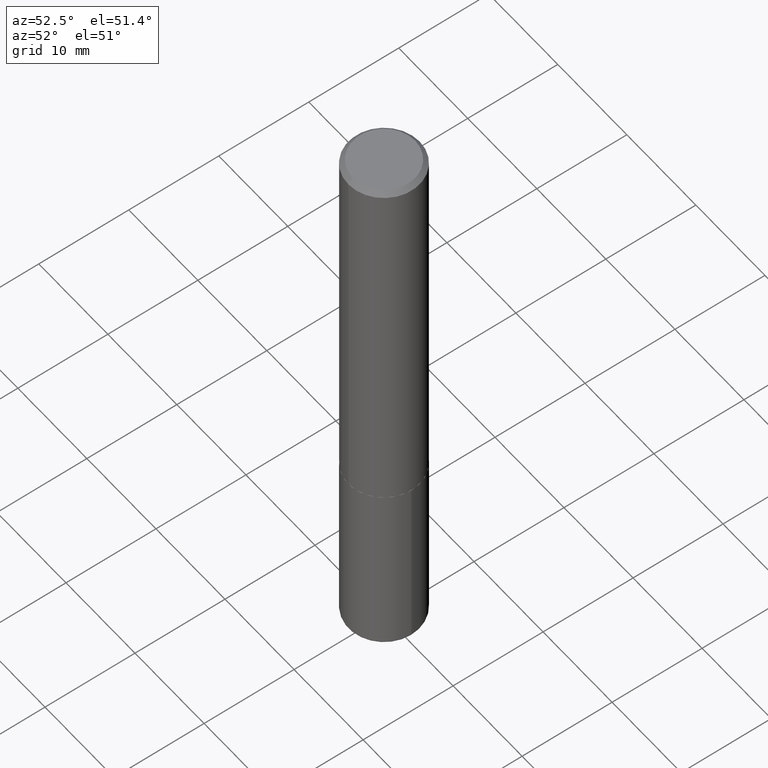
[diagram: clean part render]
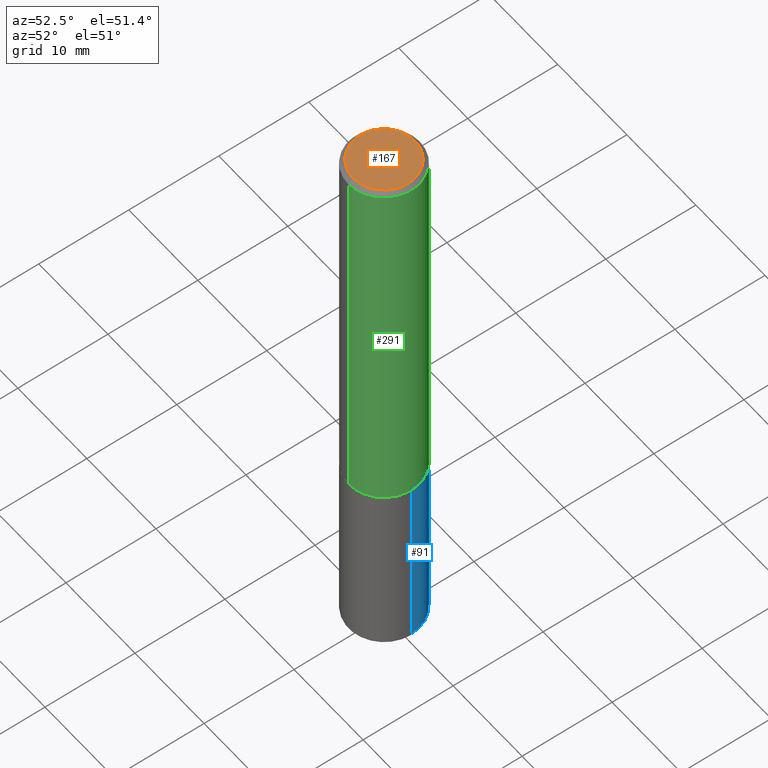
[diagram: same view with three faces highlighted in distinct colors, each labeled with its STEP entity id]
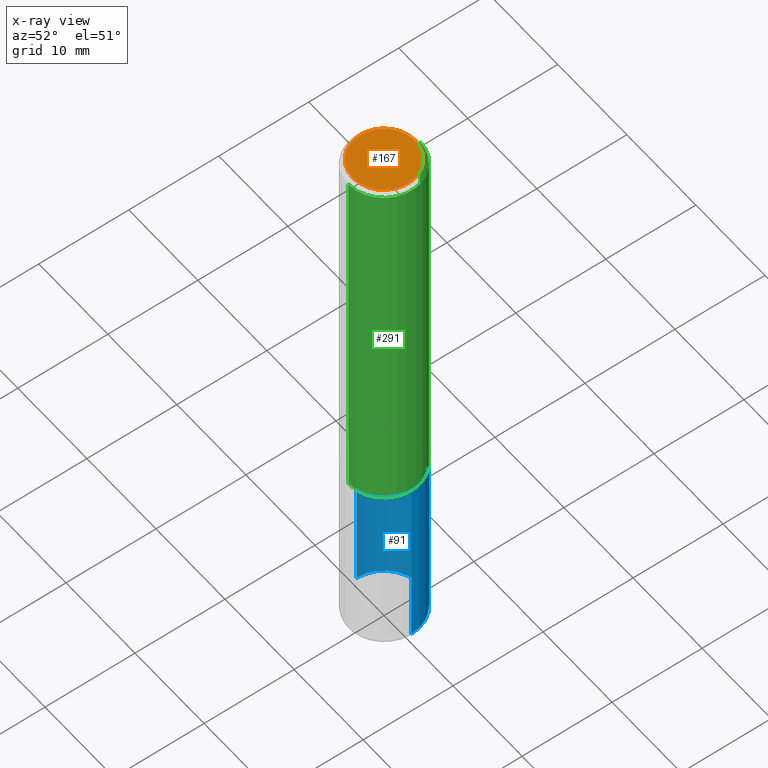
[diagram: x-ray of the same camera — body ghosted, the three highlighted faces saturated]
A machine part, auxiliary view with three faces highlighted in distinct colors.
The next image is the same camera in x-ray (body ghosted, the three faces saturated) — at least one of them is partly hidden behind the body in this view.
Their STEP definitions:

[orange] entity #167 — the highlighted planar face has unit normal (0, -0, -1).
#11 = CARTESIAN_POINT ( 'NONE',  ( 2.507022930474334728E-45, -3.578464380885487858E-31, -1.025042003819408096E-16 ) ) ;
#20 = AXIS2_PLACEMENT_3D ( 'NONE', #194, #153, #325 ) ;
#36 = DIRECTION ( 'NONE',  ( -6.982962677686265922E-15, -1.000000000000000000, 3.491041701268606382E-15 ) ) ;
#57 = VERTEX_POINT ( 'NONE', #114 ) ;
#65 = CARTESIAN_POINT ( 'NONE',  ( 1.021258291611617059E-15, 0.1362500000000001210, -5.781586321797888956E-16 ) ) ;
#66 = EDGE_LOOP ( 'NONE', ( #350, #88 ) ) ;
#88 = ORIENTED_EDGE ( 'NONE', *, *, #92, .T. ) ;
#92 = EDGE_CURVE ( 'NONE', #57, #275, #108, .T. ) ;
#100 = FACE_OUTER_BOUND ( 'NONE', #66, .T. ) ;
#106 = EDGE_CURVE ( 'NONE', #275, #57, #199, .T. ) ;
#108 = CIRCLE ( 'NONE', #296, 0.1362500000000001210 ) ;
#114 = CARTESIAN_POINT ( 'NONE',  ( -1.003347832174086672E-15, -0.1362500000000001210, 3.731502314159072271E-16 ) ) ;
#140 = DIRECTION ( 'NONE',  ( -2.445775803462607950E-29, 3.491041701268606382E-15, 1.000000000000000000 ) ) ;
#153 = DIRECTION ( 'NONE',  ( 2.445775803462607950E-29, -3.491041701268606382E-15, -1.000000000000000000 ) ) ;
#160 = PLANE ( 'NONE',  #20 ) ;
#167 = ADVANCED_FACE ( 'NONE', ( #100 ), #160, .F. ) ;
#194 = CARTESIAN_POINT ( 'NONE',  ( 9.514286648347545493E-16, 0.1362500000000001210, -5.269065319888184785E-16 ) ) ;
#199 = CIRCLE ( 'NONE', #331, 0.1362500000000001210 ) ;
#211 = DIRECTION ( 'NONE',  ( -2.445775803462607950E-29, 3.491041701268606382E-15, 1.000000000000000000 ) ) ;
#236 = CARTESIAN_POINT ( 'NONE',  ( 2.507022930474334728E-45, -3.578464380885487858E-31, -1.025042003819408096E-16 ) ) ;
#275 = VERTEX_POINT ( 'NONE', #65 ) ;
#296 = AXIS2_PLACEMENT_3D ( 'NONE', #11, #140, #369 ) ;
#325 = DIRECTION ( 'NONE',  ( 6.982962677686265922E-15, 1.000000000000000000, -3.491041701268606382E-15 ) ) ;
#331 = AXIS2_PLACEMENT_3D ( 'NONE', #236, #211, #36 ) ;
#350 = ORIENTED_EDGE ( 'NONE', *, *, #106, .T. ) ;
#369 = DIRECTION ( 'NONE',  ( -6.982962677686265922E-15, -1.000000000000000000, 3.491041701268606382E-15 ) ) ;

[blue] entity #91 — the highlighted cylindrical surface (partial cylindrical patch) has radius 3.9688 mm, axis along (-0, 0, 1).
#4 = DIRECTION ( 'NONE',  ( -2.445468806185136877E-29, 3.491481338843145188E-15, 1.000000000000000000 ) ) ;
#16 = EDGE_CURVE ( 'NONE', #353, #219, #260, .T. ) ;
#32 = EDGE_CURVE ( 'NONE', #313, #323, #39, .T. ) ;
#39 = LINE ( 'NONE', #239, #181 ) ;
#48 = CARTESIAN_POINT ( 'NONE',  ( -0.1562500000000000000, -6.173007048201645860E-15, -1.687000000000000277 ) ) ;
#77 = FACE_OUTER_BOUND ( 'NONE', #126, .T. ) ;
#83 = CARTESIAN_POINT ( 'NONE',  ( 0.1562500000000002220, -9.767419045413696643E-15, -2.484999999999999876 ) ) ;
#91 = ADVANCED_FACE ( 'NONE', ( #77 ), #144, .T. ) ;
#99 = ORIENTED_EDGE ( 'NONE', *, *, #16, .T. ) ;
#107 = DIRECTION ( 'NONE',  ( 1.000000000000000000, -6.982962677686266711E-15, 4.876176775795936353E-29 ) ) ;
#110 = CARTESIAN_POINT ( 'NONE',  ( 0.000000000000000000, 0.000000000000000000, 0.000000000000000000 ) ) ;
#120 = AXIS2_PLACEMENT_3D ( 'NONE', #175, #290, #408 ) ;
#126 = EDGE_LOOP ( 'NONE', ( #247, #99, #348, #326 ) ) ;
#141 = CARTESIAN_POINT ( 'NONE',  ( 6.076989983370064174E-29, -8.676331127025216680E-15, -2.484999999999999876 ) ) ;
#144 = CYLINDRICAL_SURFACE ( 'NONE', #309, 0.1562500000000000000 ) ;
#151 = EDGE_CURVE ( 'NONE', #323, #219, #304, .T. ) ;
#172 = CARTESIAN_POINT ( 'NONE',  ( -0.1562500000000000000, 1.110223024625156540E-15, -7.685836078523291160E-30 ) ) ;
#175 = CARTESIAN_POINT ( 'NONE',  ( 4.125505876034326327E-29, -5.890129018628388122E-15, -1.687000000000000277 ) ) ;
#181 = VECTOR ( 'NONE', #270, 39.37007874015748143 ) ;
#189 = AXIS2_PLACEMENT_3D ( 'NONE', #141, #235, #216 ) ;
#216 = DIRECTION ( 'NONE',  ( 1.000000000000000000, -6.982962677686269077E-15, 0.000000000000000000 ) ) ;
#219 = VERTEX_POINT ( 'NONE', #48 ) ;
#235 = DIRECTION ( 'NONE',  ( -2.445468806185136597E-29, 3.491481338843145583E-15, 1.000000000000000000 ) ) ;
#237 = EDGE_CURVE ( 'NONE', #313, #353, #384, .T. ) ;
#239 = CARTESIAN_POINT ( 'NONE',  ( 0.1562500000000000000, -1.091087918388479174E-15, 7.619026212181150377E-30 ) ) ;
#247 = ORIENTED_EDGE ( 'NONE', *, *, #237, .T. ) ;
#260 = LINE ( 'NONE', #172, #318 ) ;
#270 = DIRECTION ( 'NONE',  ( -2.445468806185136877E-29, 3.491481338843145188E-15, 1.000000000000000000 ) ) ;
#290 = DIRECTION ( 'NONE',  ( -2.445468806185136597E-29, 3.491481338843145583E-15, 1.000000000000000000 ) ) ;
#300 = DIRECTION ( 'NONE',  ( -2.445468806185136597E-29, 3.491481338843145583E-15, 1.000000000000000000 ) ) ;
#304 = CIRCLE ( 'NONE', #120, 0.1562500000000000000 ) ;
#306 = CARTESIAN_POINT ( 'NONE',  ( 0.1562500000000000000, -6.981216937016868084E-15, -1.687000000000000277 ) ) ;
#309 = AXIS2_PLACEMENT_3D ( 'NONE', #110, #300, #107 ) ;
#313 = VERTEX_POINT ( 'NONE', #83 ) ;
#318 = VECTOR ( 'NONE', #4, 39.37007874015748143 ) ;
#323 = VERTEX_POINT ( 'NONE', #306 ) ;
#326 = ORIENTED_EDGE ( 'NONE', *, *, #32, .F. ) ;
#334 = CARTESIAN_POINT ( 'NONE',  ( -0.1562500000000002220, -7.566108102400058562E-15, -2.484999999999999876 ) ) ;
#348 = ORIENTED_EDGE ( 'NONE', *, *, #151, .F. ) ;
#353 = VERTEX_POINT ( 'NONE', #334 ) ;
#384 = CIRCLE ( 'NONE', #189, 0.1562500000000000000 ) ;
#408 = DIRECTION ( 'NONE',  ( 1.000000000000000000, -6.982962677686269077E-15, 0.000000000000000000 ) ) ;

[green] entity #291 — the highlighted cylindrical surface (partial cylindrical patch) has radius 3.9688 mm, axis along (-0, 0, 1).
#23 = CARTESIAN_POINT ( 'NONE',  ( -1.091087918388439730E-15, -0.1562500000000061617, -1.685999999999999721 ) ) ;
#31 = CYLINDRICAL_SURFACE ( 'NONE', #213, 0.1562500000000001388 ) ;
#47 = DIRECTION ( 'NONE',  ( -2.445775803462607950E-29, 3.491041701268606382E-15, 1.000000000000000000 ) ) ;
#64 = AXIS2_PLACEMENT_3D ( 'NONE', #112, #47, #180 ) ;
#78 = LINE ( 'NONE', #341, #232 ) ;
#96 = CARTESIAN_POINT ( 'NONE',  ( 1.110223024625157329E-15, 0.1562500000000001388, -5.454752658232202403E-16 ) ) ;
#97 = EDGE_LOOP ( 'NONE', ( #128, #401, #184, #285 ) ) ;
#112 = CARTESIAN_POINT ( 'NONE',  ( 4.891551606925223922E-31, -6.982083402537224056E-17, -0.02000000000000003511 ) ) ;
#128 = ORIENTED_EDGE ( 'NONE', *, *, #377, .T. ) ;
#145 = DIRECTION ( 'NONE',  ( -2.445775803462607950E-29, 3.491041701268606382E-15, 1.000000000000000000 ) ) ;
#158 = VERTEX_POINT ( 'NONE', #250 ) ;
#166 = FACE_OUTER_BOUND ( 'NONE', #97, .T. ) ;
#177 = DIRECTION ( 'NONE',  ( -2.445775803462607670E-29, 3.491041701268606382E-15, 1.000000000000000000 ) ) ;
#180 = DIRECTION ( 'NONE',  ( -6.982962677686265133E-15, -1.000000000000000000, 3.496765431890256920E-15 ) ) ;
#182 = CIRCLE ( 'NONE', #248, 0.1562500000000002776 ) ;
#183 = EDGE_CURVE ( 'NONE', #223, #158, #380, .T. ) ;
#184 = ORIENTED_EDGE ( 'NONE', *, *, #393, .F. ) ;
#213 = AXIS2_PLACEMENT_3D ( 'NONE', #364, #336, #273 ) ;
#218 = CARTESIAN_POINT ( 'NONE',  ( -1.071952812151801215E-15, -0.1562500000000000833, -0.01999999999999948694 ) ) ;
#220 = VERTEX_POINT ( 'NONE', #218 ) ;
#222 = DIRECTION ( 'NONE',  ( -2.445775803462607670E-29, 3.491041701268606382E-15, 1.000000000000000000 ) ) ;
#223 = VERTEX_POINT ( 'NONE', #277 ) ;
#231 = VECTOR ( 'NONE', #222, 39.37007874015748143 ) ;
#232 = VECTOR ( 'NONE', #177, 39.37007874015748143 ) ;
#244 = VERTEX_POINT ( 'NONE', #23 ) ;
#248 = AXIS2_PLACEMENT_3D ( 'NONE', #394, #145, #399 ) ;
#250 = CARTESIAN_POINT ( 'NONE',  ( 1.091087918388479568E-15, 0.1562499999999999445, -0.02000000000000057981 ) ) ;
#273 = DIRECTION ( 'NONE',  ( -6.982962677686265922E-15, -1.000000000000000000, 3.491041701268606382E-15 ) ) ;
#277 = CARTESIAN_POINT ( 'NONE',  ( 1.110223024625178629E-15, 0.1562499999999943934, -1.686000000000000831 ) ) ;
#285 = ORIENTED_EDGE ( 'NONE', *, *, #414, .F. ) ;
#291 = ADVANCED_FACE ( 'NONE', ( #166 ), #31, .T. ) ;
#336 = DIRECTION ( 'NONE',  ( -2.445775803462607950E-29, 3.491041701268606382E-15, 1.000000000000000000 ) ) ;
#341 = CARTESIAN_POINT ( 'NONE',  ( -1.091087918388479962E-15, -0.1562500000000001388, 5.454752658232202403E-16 ) ) ;
#364 = CARTESIAN_POINT ( 'NONE',  ( 0.000000000000000000, 0.000000000000000000, 0.000000000000000000 ) ) ;
#377 = EDGE_CURVE ( 'NONE', #244, #223, #182, .T. ) ;
#380 = LINE ( 'NONE', #96, #231 ) ;
#393 = EDGE_CURVE ( 'NONE', #220, #158, #417, .T. ) ;
#394 = CARTESIAN_POINT ( 'NONE',  ( 4.123578004637957798E-29, -5.885896308338871459E-15, -1.686000000000000165 ) ) ;
#399 = DIRECTION ( 'NONE',  ( -6.982962677686265922E-15, -1.000000000000000000, 3.496765431890250609E-15 ) ) ;
#401 = ORIENTED_EDGE ( 'NONE', *, *, #183, .T. ) ;
#414 = EDGE_CURVE ( 'NONE', #244, #220, #78, .T. ) ;
#417 = CIRCLE ( 'NONE', #64, 0.1562500000000000000 ) ;